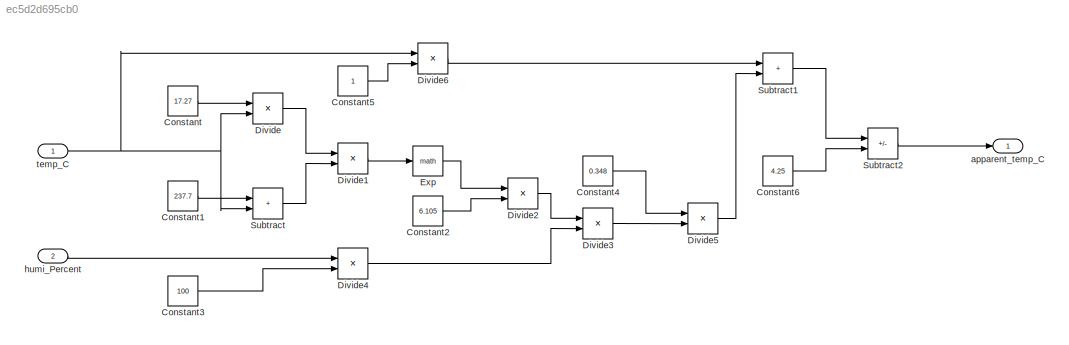
MODEL slx_ec5d2d695cb0
KIND model
CONFIG AbsTol = auto
CONFIG EnableMultiTasking = off
CONFIG FixedStep = auto
CONFIG MaxStep = auto
CONFIG MinStep = auto
CONFIG RelTol = 1e-3
CONFIG SampleTimeConstraint = Unconstrained
CONFIG SolverName = VariableStepAuto
CONFIG StartTime = 0.0
CONFIG StopTime = 10.0
BLOCK [Constant] Constant
  Value = 17.27
BLOCK [Constant] Constant1
  Value = 237.7
BLOCK [Constant] Constant2
  Value = 6.105
BLOCK [Constant] Constant3
  Value = 100
BLOCK [Constant] Constant4
  Value = 0.348
BLOCK [Constant] Constant5
BLOCK [Constant] Constant6
  Value = 4.25
BLOCK [Product] Divide
  Inputs = **
  Ports = [2, 1]
BLOCK [Product] Divide1
  Inputs = */
  Ports = [2, 1]
BLOCK [Product] Divide2
  Inputs = **
  Ports = [2, 1]
BLOCK [Product] Divide3
  Inputs = **
  Ports = [2, 1]
BLOCK [Product] Divide4
  Inputs = */
  Ports = [2, 1]
BLOCK [Product] Divide5
  Inputs = **
  Ports = [2, 1]
BLOCK [Product] Divide6
  Inputs = **
  Ports = [2, 1]
BLOCK [Math] Exp
  Ports = [1, 1]
BLOCK [Sum] Subtract
  IconShape = rectangular
  Ports = [2, 1]
BLOCK [Sum] Subtract1
  IconShape = rectangular
  Ports = [2, 1]
BLOCK [Sum] Subtract2
  IconShape = rectangular
  Inputs = +-
  Ports = [2, 1]
BLOCK [Outport] apparent_temp_C
BLOCK [Inport] humi_Percent
  OutDataTypeStr = double
  Port = 2
BLOCK [Inport] temp_C
  OutDataTypeStr = double
LINE Constant1:1 -> Subtract:1
LINE Constant2:1 -> Divide2:2
LINE Constant3:1 -> Divide4:2
LINE Constant4:1 -> Divide5:1
LINE Constant5:1 -> Divide6:2
LINE Constant6:1 -> Subtract2:2
LINE Constant:1 -> Divide:1
LINE Divide1:1 -> Exp:1
LINE Divide2:1 -> Divide3:1
LINE Divide3:1 -> Divide5:2
LINE Divide4:1 -> Divide3:2
LINE Divide5:1 -> Subtract1:2
LINE Divide6:1 -> Subtract1:1
LINE Divide:1 -> Divide1:1
LINE Exp:1 -> Divide2:1
LINE Subtract1:1 -> Subtract2:1
LINE Subtract2:1 -> apparent_temp_C:1
LINE Subtract:1 -> Divide1:2
LINE humi_Percent:1 -> Divide4:1
NET temp_C:1 -> Divide6:1, Divide:2, Subtract:2
note: NET lines group one-source signal fan-out (src -> all destinations, sorted); 1:1 wires keep LINE
